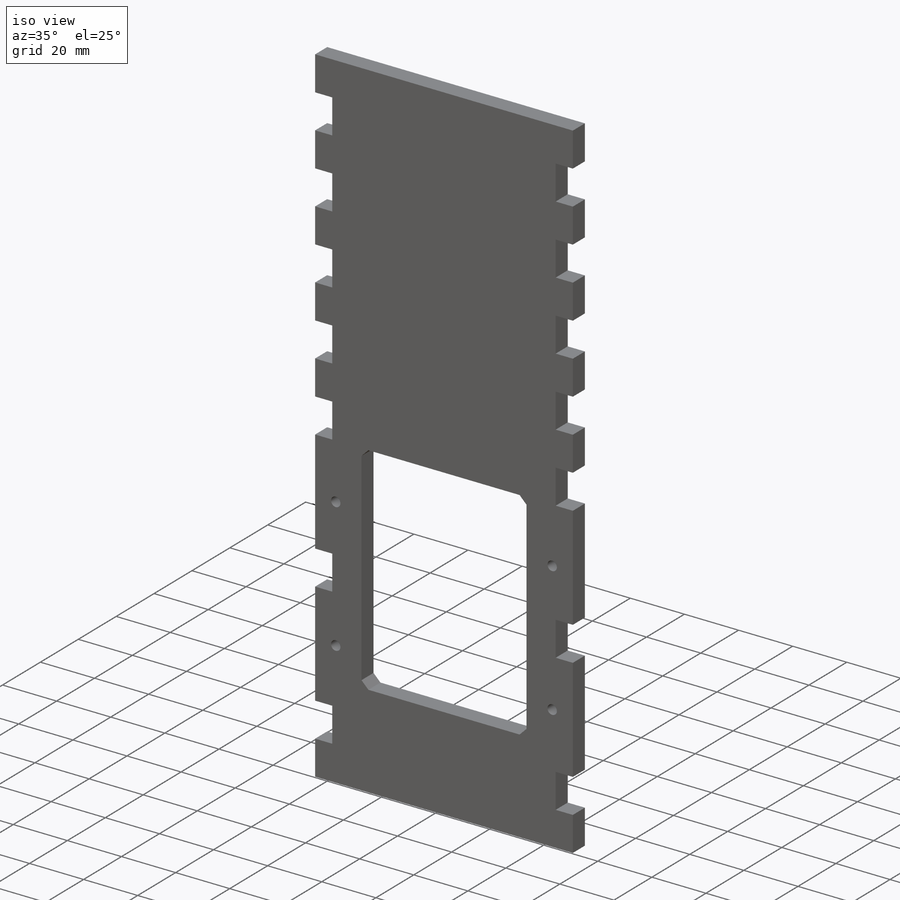
[diagram: iso view]
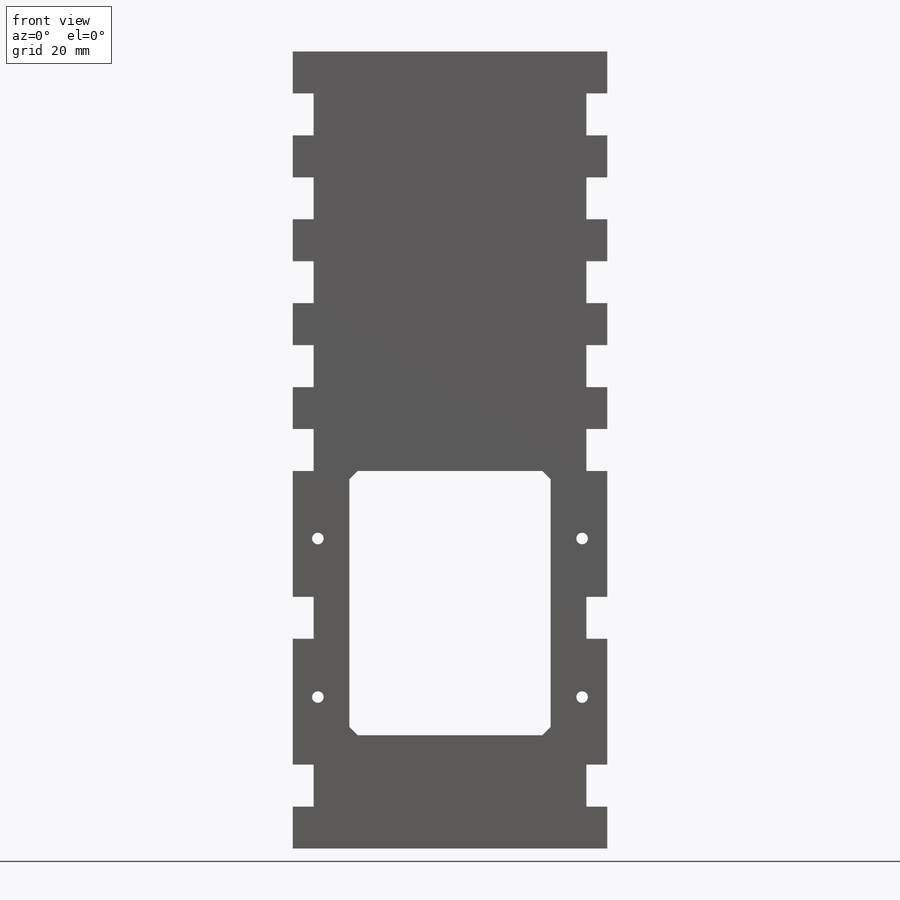
[diagram: front view]
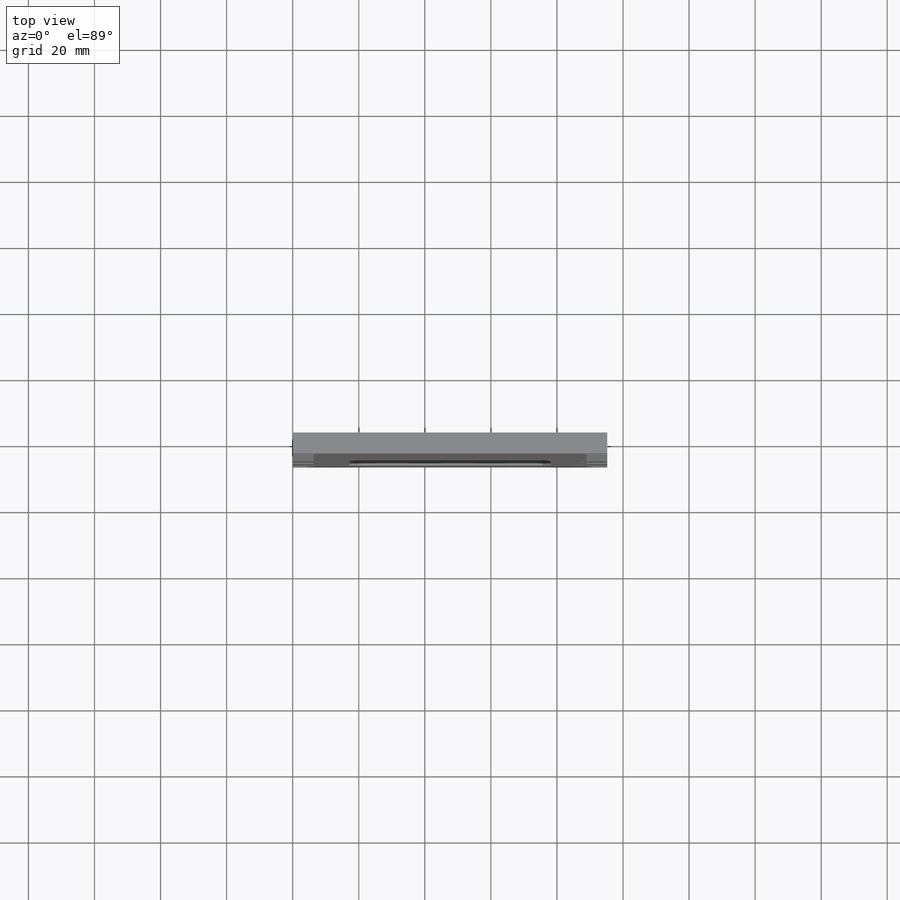
[diagram: top view]
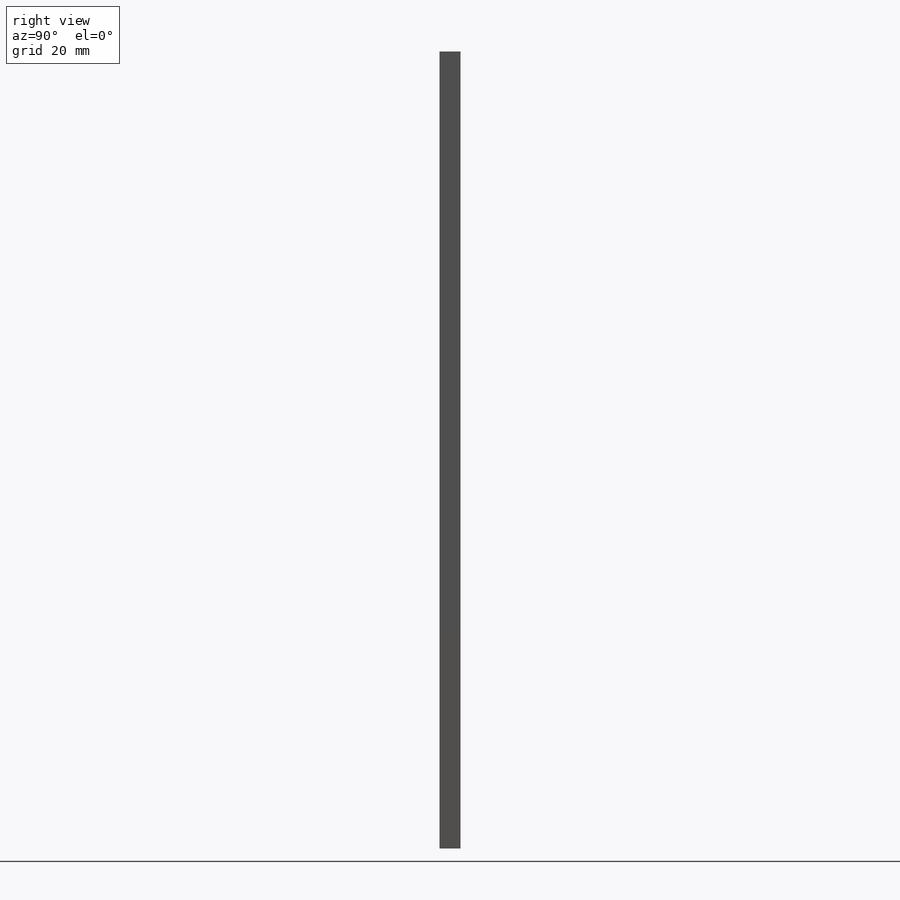
[diagram: right view]
SOLIDWORKS PART (.sldprt)
format: sldprt  version: not decoded by parser v0  size: 375,296 bytes
history: native  units: mm
features: sketch x4, cut_extrude x3, material x1, extrude x1, pattern_linear x1, chamfer x1 (+13 scaffold rows collapsed)
feature tree (24):
  scaffold x13  (default folders/planes/origin — collapsed)
  material  "Pine"
  sketch  "Sketch1"  dims[D1=95.25mm D2=241.3mm]
  extrude  "Boss-Extrude1"  Depth=6.35mm
  sketch  "Sketch2"  dims[D1=12.7mm D2=12.7mm D3=6.35mm]
  cut_extrude  "Cut-Extrude1"  [1 undecoded]
  pattern_linear  "LPattern1"  Count1=9 Count2=1 Spacing1=25.4mm Spacing2=2.54mm
  sketch  "Sketch3"  dims[D3=3.5mm D1=48.0mm D2=80.0mm]
  cut_extrude  "Cut-Extrude2"  [1 undecoded]
  sketch  "Sketch4"  dims[D1=50.8mm D2=69.85mm D3=109.22mm D4=5.08mm]
  cut_extrude  "Cut-Extrude3"  [1 undecoded]
  chamfer  "Chamfer1"  Distance=2.54mm Angle=45deg
decode coverage: 7 of 10 modeling features carry decoded parameters
note: 3 parameter values undecoded
summary: no parameter record found for 3 features
note: suppression state not decoded; provenance and decode notes live in map.json
